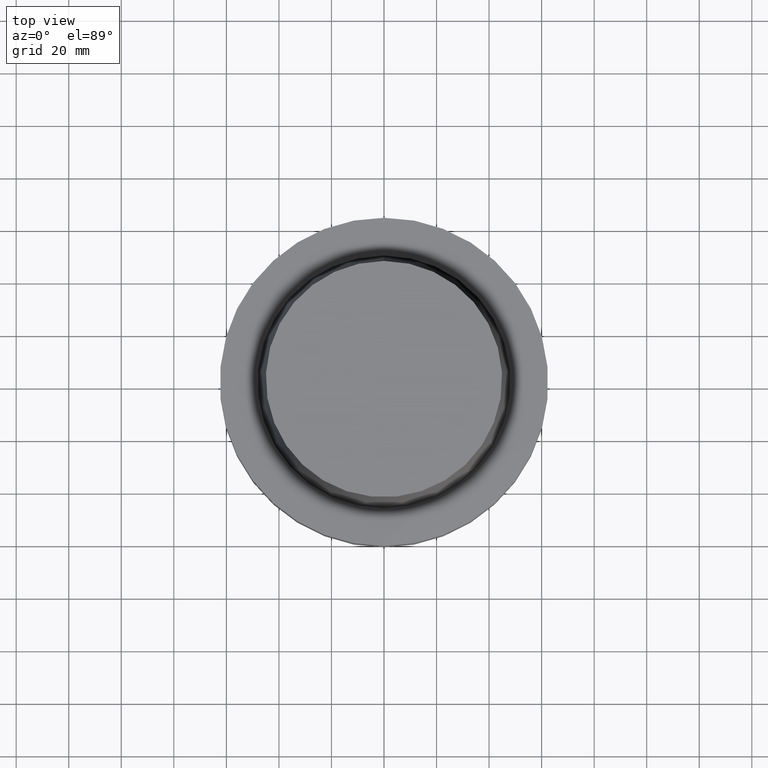
[diagram: clean part render]
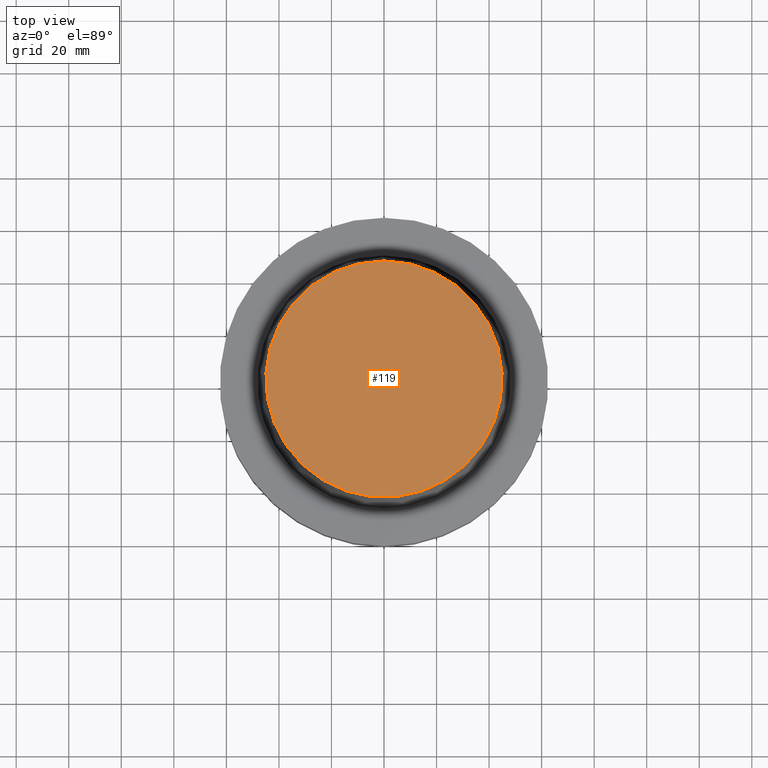
[diagram: same view with one face highlighted and labeled with its STEP entity id]
A machine part, top view. The second image highlights one B-rep face of the part: STEP entity #119.
In plain terms, the highlighted planar face has unit normal (-0, -0, 1).
Its self-contained STEP definition (entity closure, byte-faithful):
#80=EDGE_CURVE('Unnamed[1]',#193,#193,#194,.T.);
#119=ADVANCED_FACE('Unnamed[1]',(#254),#255,.T.);
#193=VERTEX_POINT('',#342);
#194=CIRCLE('',#343,44.9779398797591);
#254=FACE_OUTER_BOUND('',#418,.T.);
#255=PLANE('',#419);
#342=CARTESIAN_POINT('',(-3.85763741731416E-015,44.9779398797591,62.9999999999999));
#343=AXIS2_PLACEMENT_3D('',#501,#502,#503);
#418=EDGE_LOOP('',(#570));
#419=AXIS2_PLACEMENT_3D('',#571,#572,#573);
#501=CARTESIAN_POINT('',(-3.85763741731416E-015,-7.71527483462831E-015,62.9999999999999));
#502=DIRECTION('',(6.12323399573677E-017,1.22464679914791E-016,-1.0));
#503=DIRECTION('',(-1.23259516440771E-032,1.0,1.22464679914791E-016));
#570=ORIENTED_EDGE('',*,*,#80,.F.);
#571=CARTESIAN_POINT('',(-3.85763741731416E-015,22.4889699398795,62.9999999999999));
#572=DIRECTION('',(-6.12323399573677E-017,-1.22464679914735E-016,1.0));
#573=DIRECTION('',(1.23259516440783E-032,-1.0,-1.22464679914735E-016));